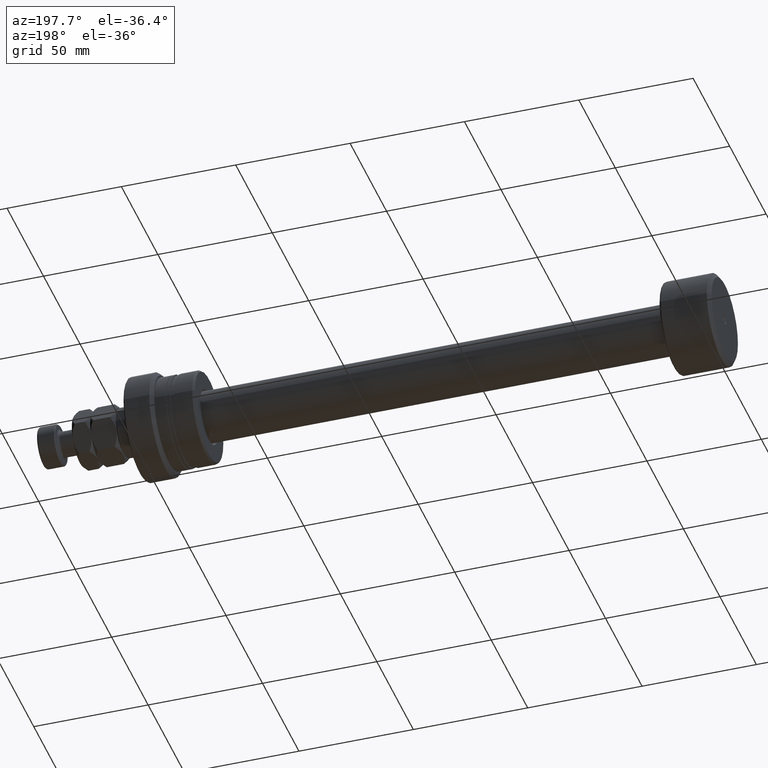
[diagram: clean part render]
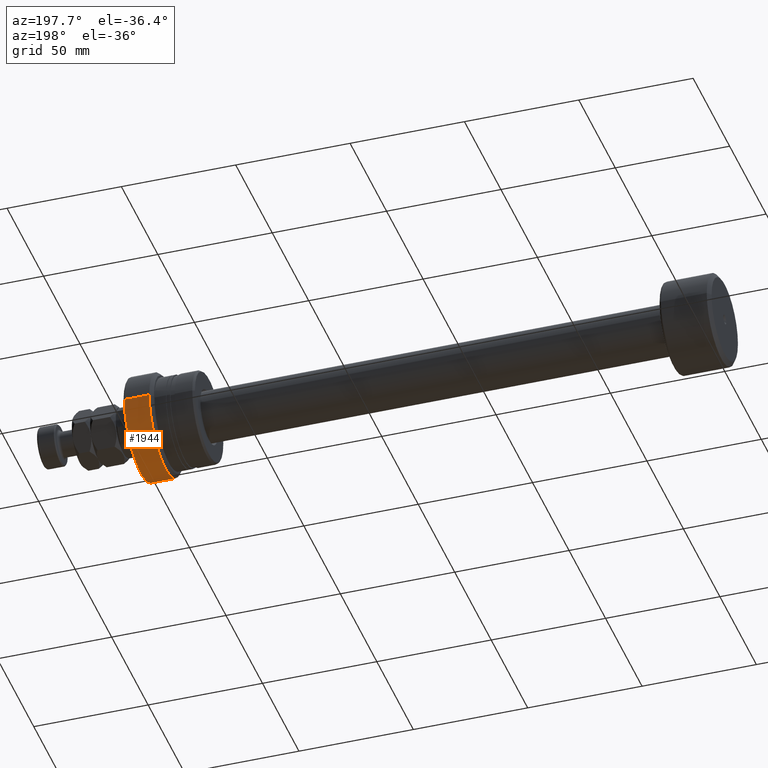
[diagram: same view with one face highlighted and labeled with its STEP entity id]
A machine part, auxiliary view. The second image highlights one B-rep face of the part: STEP entity #1944.
In plain terms, the highlighted cylindrical surface (partial cylindrical patch) has radius 22.5 mm, axis along (1, 0, 0).
Its self-contained STEP definition (entity closure, byte-faithful):
#18 = DIRECTION ( 'NONE',  ( -3.035766082959400977E-15, 1.000000000000000000, 0.000000000000000000 ) ) ;
#119 = CARTESIAN_POINT ( 'NONE',  ( -1.600000000000832312, 22.50000000000017408, 0.000000000000000000 ) ) ;
#211 = EDGE_CURVE ( 'NONE', #3134, #3093, #2724, .T. ) ;
#220 = VECTOR ( 'NONE', #3890, 1000.000000000000000 ) ;
#280 = ORIENTED_EDGE ( 'NONE', *, *, #2318, .T. ) ;
#345 = FACE_OUTER_BOUND ( 'NONE', #1747, .T. ) ;
#351 = AXIS2_PLACEMENT_3D ( 'NONE', #598, #2851, #18 ) ;
#421 = LINE ( 'NONE', #1777, #1643 ) ;
#598 = CARTESIAN_POINT ( 'NONE',  ( -1.600000000000763922, 8.717557383052277888E-14, 0.000000000000000000 ) ) ;
#895 = ORIENTED_EDGE ( 'NONE', *, *, #3394, .T. ) ;
#1160 = AXIS2_PLACEMENT_3D ( 'NONE', #3787, #2178, #3832 ) ;
#1171 = CARTESIAN_POINT ( 'NONE',  ( -1.600000000000695755, -22.49999999999999645, 2.755455298081553850E-15 ) ) ;
#1429 = DIRECTION ( 'NONE',  ( 1.000000000000000000, 3.039592211588219332E-15, -0.000000000000000000 ) ) ;
#1640 = CYLINDRICAL_SURFACE ( 'NONE', #1160, 22.50000000000006750 ) ;
#1643 = VECTOR ( 'NONE', #3001, 1000.000000000000000 ) ;
#1702 = EDGE_CURVE ( 'NONE', #1996, #3134, #421, .T. ) ;
#1724 = CARTESIAN_POINT ( 'NONE',  ( -12.50000000000075318, 5.404401872421122820E-14, 0.000000000000000000 ) ) ;
#1747 = EDGE_LOOP ( 'NONE', ( #3864, #280, #895, #2926 ) ) ;
#1777 = CARTESIAN_POINT ( 'NONE',  ( -30.28002276692725303, -22.50000000000006750, 2.755455298081553061E-15 ) ) ;
#1792 = CARTESIAN_POINT ( 'NONE',  ( -12.50000000000082068, 22.50000000000010658, 0.000000000000000000 ) ) ;
#1944 = ADVANCED_FACE ( 'NONE', ( #345 ), #1640, .T. ) ;
#1996 = VERTEX_POINT ( 'NONE', #2863 ) ;
#2178 = DIRECTION ( 'NONE',  ( 1.000000000000000000, 3.039592211588219332E-15, -0.000000000000000000 ) ) ;
#2318 = EDGE_CURVE ( 'NONE', #1996, #2413, #3010, .T. ) ;
#2413 = VERTEX_POINT ( 'NONE', #1792 ) ;
#2724 = CIRCLE ( 'NONE', #351, 22.50000000000008527 ) ;
#2851 = DIRECTION ( 'NONE',  ( 1.000000000000000000, 3.039592211588219332E-15, -0.000000000000000000 ) ) ;
#2863 = CARTESIAN_POINT ( 'NONE',  ( -12.50000000000068567, -22.50000000000000355, 2.755455298081551483E-15 ) ) ;
#2926 = ORIENTED_EDGE ( 'NONE', *, *, #211, .F. ) ;
#2968 = DIRECTION ( 'NONE',  ( -3.006854025026458399E-15, 1.000000000000000000, 0.000000000000000000 ) ) ;
#3001 = DIRECTION ( 'NONE',  ( 1.000000000000000000, 3.039592211588219332E-15, -0.000000000000000000 ) ) ;
#3010 = CIRCLE ( 'NONE', #3661, 22.50000000000005329 ) ;
#3093 = VERTEX_POINT ( 'NONE', #119 ) ;
#3134 = VERTEX_POINT ( 'NONE', #1171 ) ;
#3394 = EDGE_CURVE ( 'NONE', #2413, #3093, #3482, .T. ) ;
#3482 = LINE ( 'NONE', #3561, #220 ) ;
#3561 = CARTESIAN_POINT ( 'NONE',  ( -30.28002276692739159, 22.50000000000006750, 0.000000000000000000 ) ) ;
#3661 = AXIS2_PLACEMENT_3D ( 'NONE', #1724, #1429, #2968 ) ;
#3787 = CARTESIAN_POINT ( 'NONE',  ( -30.28002276692732408, 0.000000000000000000, 0.000000000000000000 ) ) ;
#3832 = DIRECTION ( 'NONE',  ( -3.083952846180981011E-15, 1.000000000000000000, 0.000000000000000000 ) ) ;
#3864 = ORIENTED_EDGE ( 'NONE', *, *, #1702, .F. ) ;
#3890 = DIRECTION ( 'NONE',  ( 1.000000000000000000, 3.039592211588219332E-15, -0.000000000000000000 ) ) ;